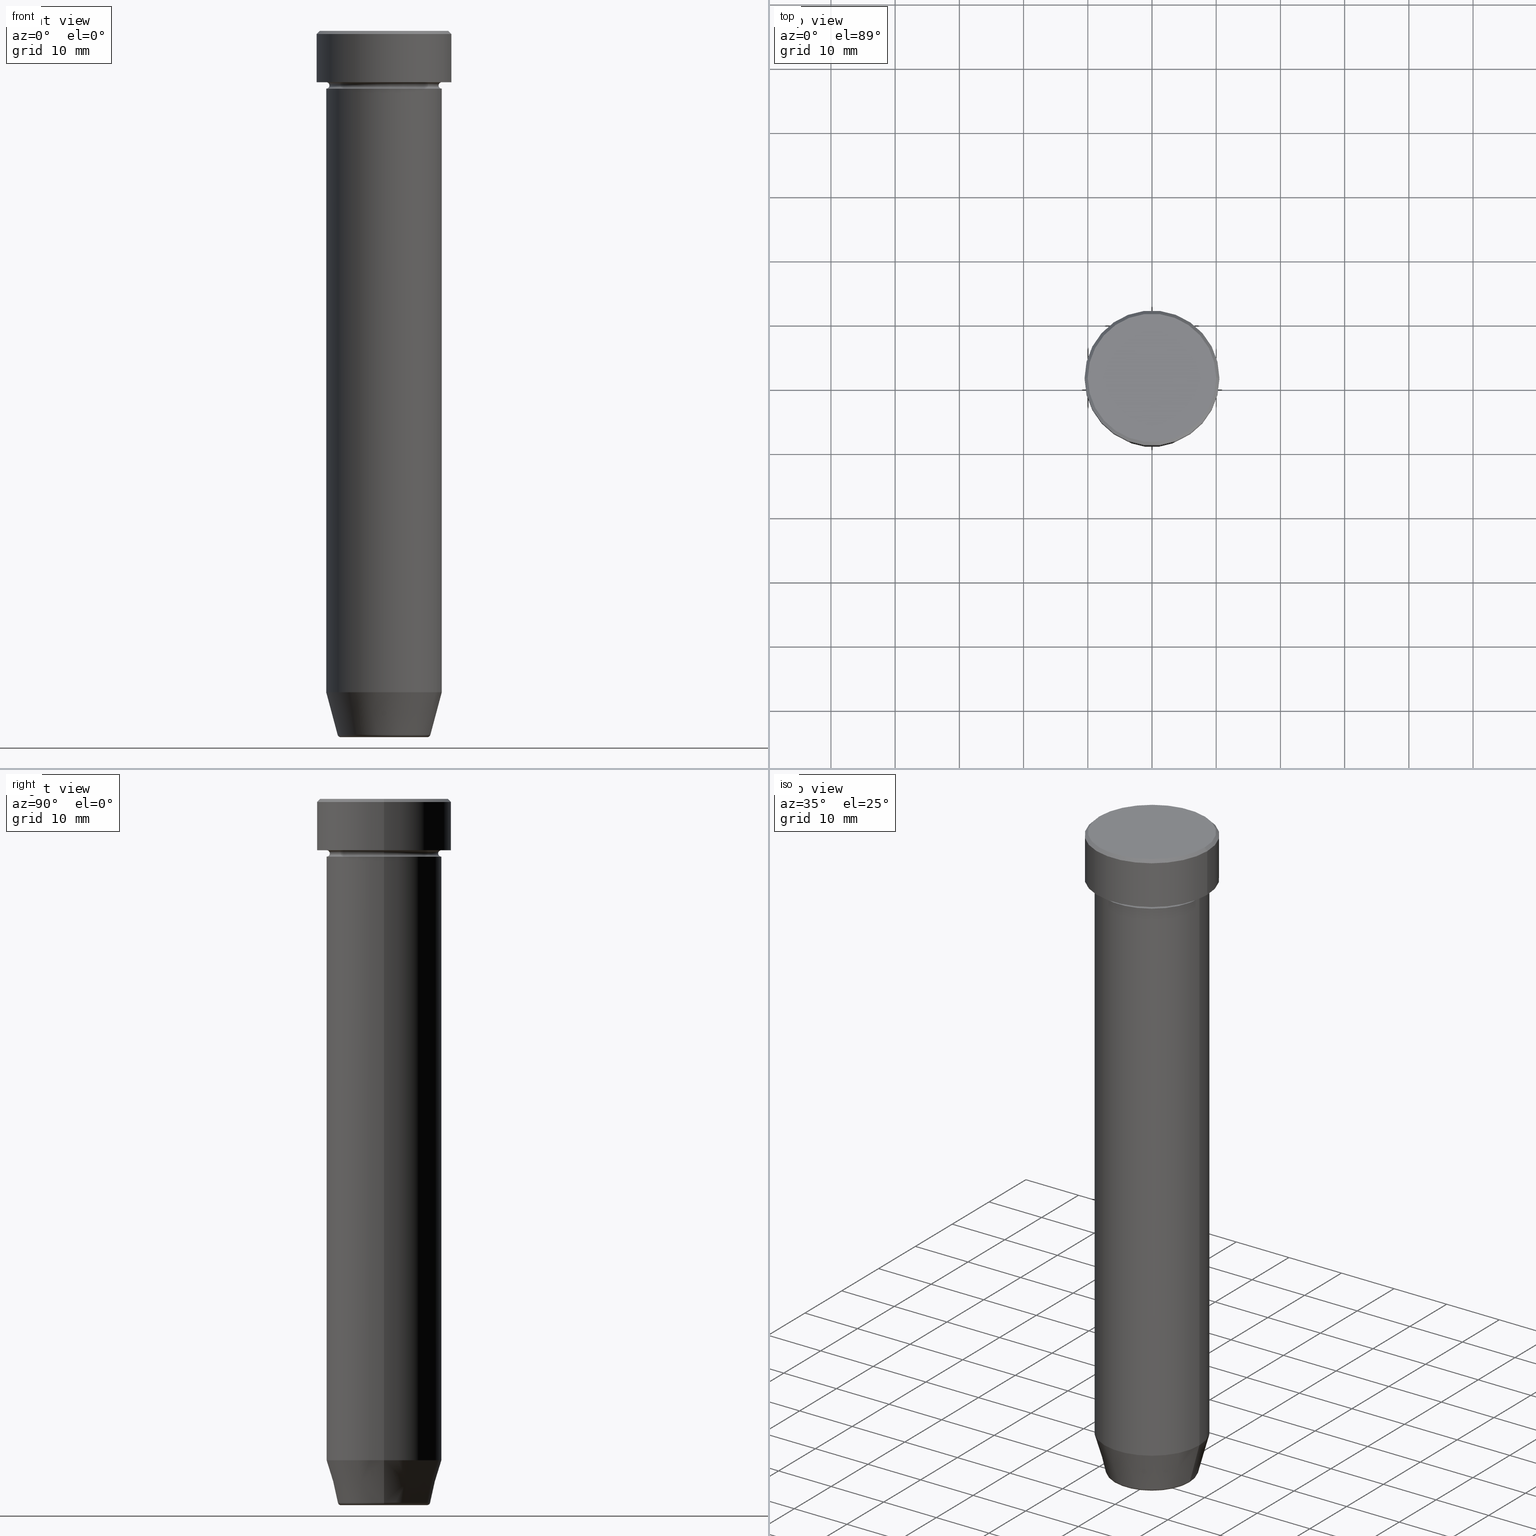
[diagram: canonical four-view strip — front | top / right | iso, engineering-drawing reading convention]
A machine part, canonical four-view strip (front | top / right | iso — engineering-drawing reading convention). The complete STEP part file that produces these views, byte-faithful:
ISO-10303-21;
HEADER;
FILE_DESCRIPTION (( 'STEP AP203' ),
    '1' );
FILE_NAME ('9805.STEP',
    '2024-01-02T22:08:02',
    ( '' ),
    ( '' ),
    'SwSTEP 2.0',
    'SolidWorks 2019',
    '' );
FILE_SCHEMA (( 'CONFIG_CONTROL_DESIGN' ));
ENDSEC;

DATA;
#1 = AXIS2_PLACEMENT_3D ( 'NONE', #414, #132, #416 ) ;
#2 = EDGE_CURVE ( 'NONE', #444, #439, #373, .T. ) ;
#3 = FACE_OUTER_BOUND ( 'NONE', #287, .T. ) ;
#4 = FACE_OUTER_BOUND ( 'NONE', #521, .T. ) ;
#5 = CARTESIAN_POINT ( 'NONE',  ( 0.000000000000000000, 10.50000000000000000, -8.000000000000000000 ) ) ;
#6 = VERTEX_POINT ( 'NONE', #308 ) ;
#7 = CARTESIAN_POINT ( 'NONE',  ( 0.000000000000000000, 0.000000000000000000, 0.000000000000000000 ) ) ;
#8 = AXIS2_PLACEMENT_3D ( 'NONE', #187, #182, #559 ) ;
#9 = DIRECTION ( 'NONE',  ( -0.000000000000000000, -0.000000000000000000, 1.000000000000000000 ) ) ;
#10 = VERTEX_POINT ( 'NONE', #160 ) ;
#11 = CARTESIAN_POINT ( 'NONE',  ( 9.000000000000000000, 1.102182119232617714E-15, -8.000000000000000000 ) ) ;
#12 = ORIENTED_EDGE ( 'NONE', *, *, #585, .T. ) ;
#13 = DIRECTION ( 'NONE',  ( -0.000000000000000000, -0.000000000000000000, 1.000000000000000000 ) ) ;
#14 = DIRECTION ( 'NONE',  ( -0.000000000000000000, -0.000000000000000000, 1.000000000000000000 ) ) ;
#15 = EDGE_LOOP ( 'NONE', ( #355, #247 ) ) ;
#16 = CARTESIAN_POINT ( 'NONE',  ( 9.000000000000000000, 0.000000000000000000, 0.000000000000000000 ) ) ;
#17 = APPROVAL ( #83, 'NEUR�EN�' ) ;
#18 = CARTESIAN_POINT ( 'NONE',  ( 0.000000000000000000, 0.000000000000000000, -102.9999999999999858 ) ) ;
#19 = AXIS2_PLACEMENT_3D ( 'NONE', #111, #105, #581 ) ;
#20 = EDGE_LOOP ( 'NONE', ( #486, #291 ) ) ;
#21 = ORIENTED_EDGE ( 'NONE', *, *, #62, .T. ) ;
#22 =( NAMED_UNIT ( * ) SI_UNIT ( $, .STERADIAN. ) SOLID_ANGLE_UNIT ( ) );
#23 = ORIENTED_EDGE ( 'NONE', *, *, #95, .T. ) ;
#24 = APPROVAL ( #592, 'NEUR�EN�' ) ;
#25 = FACE_OUTER_BOUND ( 'NONE', #360, .T. ) ;
#26 = AXIS2_PLACEMENT_3D ( 'NONE', #159, #532, #109 ) ;
#27 = EDGE_LOOP ( 'NONE', ( #319, #235, #350, #121 ) ) ;
#28 = CC_DESIGN_APPROVAL ( #24, ( #330 ) ) ;
#29 = DIRECTION ( 'NONE',  ( -0.000000000000000000, -0.000000000000000000, 1.000000000000000000 ) ) ;
#30 = VERTEX_POINT ( 'NONE', #74 ) ;
#31 = PERSON_AND_ORGANIZATION_ROLE ( 'design_supplier' ) ;
#32 = AXIS2_PLACEMENT_3D ( 'NONE', #497, #499, #124 ) ;
#33 = EDGE_CURVE ( 'NONE', #185, #155, #59, .T. ) ;
#34 = ORIENTED_EDGE ( 'NONE', *, *, #500, .T. ) ;
#35 = AXIS2_PLACEMENT_3D ( 'NONE', #101, #189, #234 ) ;
#36 = DIRECTION ( 'NONE',  ( 0.000000000000000000, 0.000000000000000000, -1.000000000000000000 ) ) ;
#37 = CIRCLE ( 'NONE', #116, 0.5000000000000004441 ) ;
#38 = PERSON_AND_ORGANIZATION ( #313, #90 ) ;
#39 = CARTESIAN_POINT ( 'NONE',  ( 6.740692158992655614, 0.000000000000000000, -109.9999999999999858 ) ) ;
#40 = DATE_TIME_ROLE ( 'creation_date' ) ;
#41 = DATE_AND_TIME ( #79, #264 ) ;
#42 = ADVANCED_FACE ( 'NONE', ( #120 ), #265, .T. ) ;
#43 = EDGE_LOOP ( 'NONE', ( #261, #147, #312, #527 ) ) ;
#44 = CARTESIAN_POINT ( 'NONE',  ( 0.000000000000000000, 0.000000000000000000, -22.00000000000000000 ) ) ;
#45 = AXIS2_PLACEMENT_3D ( 'NONE', #113, #309, #496 ) ;
#46 = DIRECTION ( 'NONE',  ( -1.000000000000000000, 0.000000000000000000, 0.000000000000000000 ) ) ;
#47 = CIRCLE ( 'NONE', #174, 6.740692158992655614 ) ;
#48 = ADVANCED_FACE ( 'NONE', ( #237 ), #318, .F. ) ;
#49 = DIRECTION ( 'NONE',  ( -0.000000000000000000, -0.000000000000000000, 1.000000000000000000 ) ) ;
#50 = CYLINDRICAL_SURFACE ( 'NONE', #152, 10.50000000000000000 ) ;
#51 = CARTESIAN_POINT ( 'NONE',  ( -10.00000000000000178, 0.000000000000000000, 0.000000000000000000 ) ) ;
#52 = ORIENTED_EDGE ( 'NONE', *, *, #33, .T. ) ;
#53 = DIRECTION ( 'NONE',  ( 0.000000000000000000, 0.000000000000000000, -1.000000000000000000 ) ) ;
#54 = CIRCLE ( 'NONE', #574, 10.50000000000000000 ) ;
#55 = CARTESIAN_POINT ( 'NONE',  ( 0.000000000000000000, 0.000000000000000000, -8.000000000000000000 ) ) ;
#56 = ORIENTED_EDGE ( 'NONE', *, *, #417, .T. ) ;
#57 = CARTESIAN_POINT ( 'NONE',  ( 8.499999999999998224, 0.000000000000000000, -8.500000000000000000 ) ) ;
#58 = DIRECTION ( 'NONE',  ( -0.2588190451025210725, 3.169619151431769255E-17, 0.9659258262890680902 ) ) ;
#59 = CIRCLE ( 'NONE', #283, 0.5000000000000004441 ) ;
#60 = ORIENTED_EDGE ( 'NONE', *, *, #192, .F. ) ;
#62 = EDGE_CURVE ( 'NONE', #243, #439, #422, .T. ) ;
#61 = LINE ( 'NONE', #16, #363 ) ;
#63 = CARTESIAN_POINT ( 'NONE',  ( 0.000000000000000000, 0.000000000000000000, -8.000000000000000000 ) ) ;
#64 = VERTEX_POINT ( 'NONE', #277 ) ;
#65 = CARTESIAN_POINT ( 'NONE',  ( -9.000000000000000000, 1.102182119232617714E-15, -22.00000000000000000 ) ) ;
#66 = CARTESIAN_POINT ( 'NONE',  ( 7.124355652982136355, 0.000000000000000000, -109.9999999999999858 ) ) ;
#67 = CIRCLE ( 'NONE', #525, 9.000000000000000000 ) ;
#68 = LOCAL_TIME ( 23, 8, 2.000000000000000000, #276 ) ;
#69 = PRODUCT_DEFINITION_SHAPE ( 'NONE', 'NONE',  #330 ) ;
#70 = ORIENTED_EDGE ( 'NONE', *, *, #131, .T. ) ;
#71 = CARTESIAN_POINT ( 'NONE',  ( 0.000000000000000000, 0.000000000000000000, 0.000000000000000000 ) ) ;
#72 = DIRECTION ( 'NONE',  ( -1.000000000000000000, 0.000000000000000000, 0.000000000000000000 ) ) ;
#73 = EDGE_CURVE ( 'NONE', #533, #155, #467, .T. ) ;
#74 = CARTESIAN_POINT ( 'NONE',  ( -10.50000000000000000, 1.285879139104720831E-15, -8.000000000000000000 ) ) ;
#75 = EDGE_LOOP ( 'NONE', ( #374, #547, #78, #397 ) ) ;
#76 = DIRECTION ( 'NONE',  ( -0.000000000000000000, -0.000000000000000000, 1.000000000000000000 ) ) ;
#77 = AXIS2_PLACEMENT_3D ( 'NONE', #538, #578, #576 ) ;
#78 = ORIENTED_EDGE ( 'NONE', *, *, #398, .T. ) ;
#79 = CALENDAR_DATE ( 2024, 2, 1 ) ;
#80 = EDGE_CURVE ( 'NONE', #135, #401, #47, .T. ) ;
#81 = DIRECTION ( 'NONE',  ( -0.000000000000000000, -0.000000000000000000, 1.000000000000000000 ) ) ;
#82 = AXIS2_PLACEMENT_3D ( 'NONE', #332, #193, #561 ) ;
#83 = APPROVAL_STATUS ( 'not_yet_approved' ) ;
#84 = APPROVAL ( #172, 'NEUR�EN�' ) ;
#85 = FACE_OUTER_BOUND ( 'NONE', #347, .T. ) ;
#86 = AXIS2_PLACEMENT_3D ( 'NONE', #98, #36, #224 ) ;
#87 = FACE_OUTER_BOUND ( 'NONE', #502, .T. ) ;
#88 = TOROIDAL_SURFACE ( 'NONE', #428, 6.740692158992655614, 0.5000000000000000000 ) ;
#89 = APPROVAL_DATE_TIME ( #324, #17 ) ;
#90 = ORGANIZATION ( 'NEUR�EN�', 'NEUR�EN�', '' ) ;
#91 = ADVANCED_FACE ( 'NONE', ( #92 ), #385, .F. ) ;
#92 = FACE_OUTER_BOUND ( 'NONE', #20, .T. ) ;
#93 = PERSON_AND_ORGANIZATION ( #313, #90 ) ;
#95 = EDGE_CURVE ( 'NONE', #127, #339, #511, .T. ) ;
#94 = DIRECTION ( 'NONE',  ( 1.000000000000000000, 0.000000000000000000, 0.000000000000000000 ) ) ;
#96 = CONICAL_SURFACE ( 'NONE', #8, 7.124355652982136355, 0.2617993877991497964 ) ;
#97 = AXIS2_PLACEMENT_3D ( 'NONE', #437, #161, #167 ) ;
#98 = CARTESIAN_POINT ( 'NONE',  ( 0.000000000000000000, 0.000000000000000000, -0.5000000000000023315 ) ) ;
#99 = ORIENTED_EDGE ( 'NONE', *, *, #269, .F. ) ;
#100 = CARTESIAN_POINT ( 'NONE',  ( 0.000000000000000000, 0.000000000000000000, -0.5000000000000023315 ) ) ;
#101 = CARTESIAN_POINT ( 'NONE',  ( 0.000000000000000000, 0.000000000000000000, -8.000000000000000000 ) ) ;
#102 = ORIENTED_EDGE ( 'NONE', *, *, #549, .F. ) ;
#103 = CARTESIAN_POINT ( 'NONE',  ( -6.740692158992655614, 8.550696569392681737E-16, -109.9999999999999858 ) ) ;
#104 = CIRCLE ( 'NONE', #412, 10.50000000000000000 ) ;
#105 = DIRECTION ( 'NONE',  ( -0.000000000000000000, -0.000000000000000000, 1.000000000000000000 ) ) ;
#106 = EDGE_CURVE ( 'NONE', #110, #536, #145, .T. ) ;
#107 = VERTEX_POINT ( 'NONE', #270 ) ;
#108 = DIRECTION ( 'NONE',  ( -0.000000000000000000, -0.000000000000000000, 1.000000000000000000 ) ) ;
#109 = DIRECTION ( 'NONE',  ( 1.000000000000000000, 0.000000000000000000, 0.000000000000000000 ) ) ;
#110 = VERTEX_POINT ( 'NONE', #275 ) ;
#111 = CARTESIAN_POINT ( 'NONE',  ( 0.000000000000000000, 0.000000000000000000, -9.000000000000001776 ) ) ;
#112 = ORIENTED_EDGE ( 'NONE', *, *, #285, .F. ) ;
#113 = CARTESIAN_POINT ( 'NONE',  ( 0.000000000000000000, 0.000000000000000000, 0.000000000000000000 ) ) ;
#114 = ADVANCED_FACE ( 'NONE', ( #173 ), #411, .T. ) ;
#115 = DIRECTION ( 'NONE',  ( -0.000000000000000000, -0.000000000000000000, 1.000000000000000000 ) ) ;
#116 = AXIS2_PLACEMENT_3D ( 'NONE', #489, #354, #572 ) ;
#117 = ORIENTED_EDGE ( 'NONE', *, *, #590, .T. ) ;
#118 = DIRECTION ( 'NONE',  ( -0.000000000000000000, -0.000000000000000000, 1.000000000000000000 ) ) ;
#119 = PRODUCT_RELATED_PRODUCT_CATEGORY ( 'detail', '', ( #300 ) ) ;
#120 = FACE_OUTER_BOUND ( 'NONE', #194, .T. ) ;
#121 = ORIENTED_EDGE ( 'NONE', *, *, #149, .F. ) ;
#122 = MANIFOLD_SOLID_BREP ( 'Zaoblit4', #326 ) ;
#123 = VECTOR ( 'NONE', #58, 1000.000000000000114 ) ;
#124 = DIRECTION ( 'NONE',  ( -1.000000000000000000, -1.224646799147353454E-16, 0.000000000000000000 ) ) ;
#125 = CC_DESIGN_DATE_AND_TIME_ASSIGNMENT ( #41, #40, ( #330 ) ) ;
#126 = CALENDAR_DATE ( 2024, 2, 1 ) ;
#127 = VERTEX_POINT ( 'NONE', #177 ) ;
#128 = DATE_TIME_ROLE ( 'classification_date' ) ;
#129 = DIRECTION ( 'NONE',  ( 0.000000000000000000, -0.000000000000000000, 1.000000000000000000 ) ) ;
#130 = SHAPE_DEFINITION_REPRESENTATION ( #69, #586 ) ;
#131 = EDGE_CURVE ( 'NONE', #439, #243, #220, .T. ) ;
#132 = DIRECTION ( 'NONE',  ( 0.000000000000000000, 0.000000000000000000, -1.000000000000000000 ) ) ;
#133 = AXIS2_PLACEMENT_3D ( 'NONE', #295, #346, #209 ) ;
#134 = APPROVAL_DATE_TIME ( #415, #24 ) ;
#135 = VERTEX_POINT ( 'NONE', #39 ) ;
#136 = CLOSED_SHELL ( 'NONE', ( #359, #317, #48, #158, #519, #531, #406, #370, #176, #42, #262, #168, #114 ) ) ;
#137 = EDGE_CURVE ( 'NONE', #135, #190, #554, .T. ) ;
#138 = DIRECTION ( 'NONE',  ( -0.000000000000000000, -0.000000000000000000, 1.000000000000000000 ) ) ;
#139 = CONICAL_SURFACE ( 'NONE', #535, 7.124355652982136355, 0.2617993877991497964 ) ;
#140 = FACE_OUTER_BOUND ( 'NONE', #143, .T. ) ;
#141 = CIRCLE ( 'NONE', #212, 9.000000000000000000 ) ;
#142 = CARTESIAN_POINT ( 'NONE',  ( 0.000000000000000000, 7.347880794884118356E-15, -109.9999999999999858 ) ) ;
#143 = EDGE_LOOP ( 'NONE', ( #213, #575, #425, #102 ) ) ;
#144 = CARTESIAN_POINT ( 'NONE',  ( 0.000000000000000000, 0.000000000000000000, -9.000000000000001776 ) ) ;
#145 = CIRCLE ( 'NONE', #466, 9.000000000000000000 ) ;
#146 = DIRECTION ( 'NONE',  ( 0.000000000000000000, 0.000000000000000000, -1.000000000000000000 ) ) ;
#147 = ORIENTED_EDGE ( 'NONE', *, *, #203, .T. ) ;
#148 = DIRECTION ( 'NONE',  ( 1.000000000000000000, 0.000000000000000000, 0.000000000000000000 ) ) ;
#149 = EDGE_CURVE ( 'NONE', #64, #170, #271, .T. ) ;
#150 = ORIENTED_EDGE ( 'NONE', *, *, #215, .T. ) ;
#151 = DIRECTION ( 'NONE',  ( -0.000000000000000000, -0.000000000000000000, 1.000000000000000000 ) ) ;
#152 = AXIS2_PLACEMENT_3D ( 'NONE', #420, #568, #148 ) ;
#153 = CARTESIAN_POINT ( 'NONE',  ( 0.000000000000000000, 0.000000000000000000, -109.6294095225512564 ) ) ;
#154 =( GEOMETRIC_REPRESENTATION_CONTEXT ( 3 ) GLOBAL_UNCERTAINTY_ASSIGNED_CONTEXT ( ( #242 ) ) GLOBAL_UNIT_ASSIGNED_CONTEXT ( ( #445, #345, #22 ) ) REPRESENTATION_CONTEXT ( 'NONE', 'WORKASPACE' ) );
#155 = VERTEX_POINT ( 'NONE', #507 ) ;
#156 = CARTESIAN_POINT ( 'NONE',  ( 10.00000000000000178, 1.255262969126037241E-15, 0.000000000000000000 ) ) ;
#157 = ORIENTED_EDGE ( 'NONE', *, *, #131, .F. ) ;
#158 = ADVANCED_FACE ( 'NONE', ( #87 ), #569, .T. ) ;
#159 = CARTESIAN_POINT ( 'NONE',  ( 0.000000000000000000, 0.000000000000000000, -8.500000000000000000 ) ) ;
#160 = CARTESIAN_POINT ( 'NONE',  ( -9.000000000000000000, 1.102182119232617714E-15, -22.00000000000000000 ) ) ;
#161 = DIRECTION ( 'NONE',  ( -0.000000000000000000, -0.000000000000000000, 1.000000000000000000 ) ) ;
#162 = DIRECTION ( 'NONE',  ( -1.000000000000000000, 0.000000000000000000, 0.000000000000000000 ) ) ;
#163 = VECTOR ( 'NONE', #76, 1000.000000000000000 ) ;
#164 = ORIENTED_EDGE ( 'NONE', *, *, #549, .T. ) ;
#165 = CARTESIAN_POINT ( 'NONE',  ( -10.50000000000000000, 1.285879139104720831E-15, 0.000000000000000000 ) ) ;
#166 = ORIENTED_EDGE ( 'NONE', *, *, #297, .T. ) ;
#167 = DIRECTION ( 'NONE',  ( 1.000000000000000000, 0.000000000000000000, 0.000000000000000000 ) ) ;
#168 = ADVANCED_FACE ( 'NONE', ( #226 ), #290, .F. ) ;
#169 = VERTEX_POINT ( 'NONE', #598 ) ;
#170 = VERTEX_POINT ( 'NONE', #286 ) ;
#171 = CIRCLE ( 'NONE', #594, 7.223655072137189492 ) ;
#172 = APPROVAL_STATUS ( 'not_yet_approved' ) ;
#173 = FACE_OUTER_BOUND ( 'NONE', #27, .T. ) ;
#174 = AXIS2_PLACEMENT_3D ( 'NONE', #477, #146, #509 ) ;
#175 = PERSON_AND_ORGANIZATION ( #313, #90 ) ;
#176 = ADVANCED_FACE ( 'NONE', ( #368, #85 ), #552, .T. ) ;
#177 = CARTESIAN_POINT ( 'NONE',  ( -10.00000000000000178, 0.000000000000000000, 0.000000000000000000 ) ) ;
#178 = DATE_AND_TIME ( #217, #413 ) ;
#179 = AXIS2_PLACEMENT_3D ( 'NONE', #252, #205, #403 ) ;
#180 = EDGE_CURVE ( 'NONE', #127, #170, #474, .T. ) ;
#181 = LINE ( 'NONE', #558, #362 ) ;
#182 = DIRECTION ( 'NONE',  ( -0.000000000000000000, -0.000000000000000000, 1.000000000000000000 ) ) ;
#183 = DIRECTION ( 'NONE',  ( 0.000000000000000000, 0.000000000000000000, -1.000000000000000000 ) ) ;
#184 = AXIS2_PLACEMENT_3D ( 'NONE', #366, #460, #320 ) ;
#185 = VERTEX_POINT ( 'NONE', #196 ) ;
#186 = AXIS2_PLACEMENT_3D ( 'NONE', #144, #151, #94 ) ;
#187 = CARTESIAN_POINT ( 'NONE',  ( 0.000000000000000000, 0.000000000000000000, -109.9999999999999858 ) ) ;
#188 = APPROVAL_PERSON_ORGANIZATION ( #596, #84, #553 ) ;
#189 = DIRECTION ( 'NONE',  ( -0.000000000000000000, -0.000000000000000000, 1.000000000000000000 ) ) ;
#190 = VERTEX_POINT ( 'NONE', #338 ) ;
#192 = EDGE_CURVE ( 'NONE', #190, #536, #307, .T. ) ;
#191 = DIRECTION ( 'NONE',  ( 1.000000000000000000, 0.000000000000000000, 0.000000000000000000 ) ) ;
#193 = DIRECTION ( 'NONE',  ( -0.000000000000000000, -0.000000000000000000, 1.000000000000000000 ) ) ;
#194 = EDGE_LOOP ( 'NONE', ( #517, #543, #216, #583 ) ) ;
#195 = CARTESIAN_POINT ( 'NONE',  ( -9.000000000000000000, 1.102182119232617714E-15, 0.000000000000000000 ) ) ;
#196 = CARTESIAN_POINT ( 'NONE',  ( -8.499999999999998224, 1.071565949253933927E-15, -8.500000000000000000 ) ) ;
#197 = DESIGN_CONTEXT ( 'detailed design', #523, 'design' ) ;
#198 = EDGE_LOOP ( 'NONE', ( #12, #301, #429, #251 ) ) ;
#199 = LINE ( 'NONE', #165, #163 ) ;
#200 = AXIS2_PLACEMENT_3D ( 'NONE', #5, #183, #377 ) ;
#201 = CARTESIAN_POINT ( 'NONE',  ( 0.000000000000000000, 0.000000000000000000, -8.500000000000000000 ) ) ;
#202 = SECURITY_CLASSIFICATION ( '', '', #361 ) ;
#203 = EDGE_CURVE ( 'NONE', #401, #107, #514, .T. ) ;
#204 = ORIENTED_EDGE ( 'NONE', *, *, #565, .F. ) ;
#205 = DIRECTION ( 'NONE',  ( 0.000000000000000000, 0.000000000000000000, -1.000000000000000000 ) ) ;
#206 = DIRECTION ( 'NONE',  ( 0.000000000000000000, 0.000000000000000000, -1.000000000000000000 ) ) ;
#207 = EDGE_LOOP ( 'NONE', ( #166, #56, #99, #239 ) ) ;
#208 = DIRECTION ( 'NONE',  ( -0.000000000000000000, -0.000000000000000000, 1.000000000000000000 ) ) ;
#209 = DIRECTION ( 'NONE',  ( -1.000000000000000000, 1.224646799147353454E-16, 0.000000000000000000 ) ) ;
#210 = ORIENTED_EDGE ( 'NONE', *, *, #278, .F. ) ;
#211 = DIRECTION ( 'NONE',  ( 0.000000000000000000, 0.000000000000000000, -1.000000000000000000 ) ) ;
#212 = AXIS2_PLACEMENT_3D ( 'NONE', #442, #400, #446 ) ;
#213 = ORIENTED_EDGE ( 'NONE', *, *, #203, .F. ) ;
#214 = CARTESIAN_POINT ( 'NONE',  ( 0.000000000000000000, 0.000000000000000000, 0.000000000000000000 ) ) ;
#215 = EDGE_CURVE ( 'NONE', #185, #243, #37, .T. ) ;
#216 = ORIENTED_EDGE ( 'NONE', *, *, #573, .T. ) ;
#217 = CALENDAR_DATE ( 2024, 2, 1 ) ;
#218 = ORIENTED_EDGE ( 'NONE', *, *, #500, .F. ) ;
#219 = PERSON_AND_ORGANIZATION_ROLE ( 'creator' ) ;
#220 = CIRCLE ( 'NONE', #35, 9.000000000000000000 ) ;
#221 = CIRCLE ( 'NONE', #390, 10.50000000000000000 ) ;
#222 = EDGE_CURVE ( 'NONE', #30, #6, #104, .T. ) ;
#223 = APPROVAL_PERSON_ORGANIZATION ( #316, #17, #229 ) ;
#224 = DIRECTION ( 'NONE',  ( 1.000000000000000000, 0.000000000000000000, 0.000000000000000000 ) ) ;
#225 = PERSON_AND_ORGANIZATION ( #313, #90 ) ;
#226 = FACE_OUTER_BOUND ( 'NONE', #386, .T. ) ;
#227 = CC_DESIGN_PERSON_AND_ORGANIZATION_ASSIGNMENT ( #410, #228, ( #202 ) ) ;
#228 = PERSON_AND_ORGANIZATION_ROLE ( 'classification_officer' ) ;
#229 = APPROVAL_ROLE ( '' ) ;
#230 = CIRCLE ( 'NONE', #582, 8.499999999999998224 ) ;
#231 = ORIENTED_EDGE ( 'NONE', *, *, #249, .T. ) ;
#232 = DIRECTION ( 'NONE',  ( -0.000000000000000000, -0.000000000000000000, 1.000000000000000000 ) ) ;
#233 = DIRECTION ( 'NONE',  ( -0.000000000000000000, -0.000000000000000000, 1.000000000000000000 ) ) ;
#234 = DIRECTION ( 'NONE',  ( -1.000000000000000000, 0.000000000000000000, 0.000000000000000000 ) ) ;
#235 = ORIENTED_EDGE ( 'NONE', *, *, #95, .F. ) ;
#236 = CARTESIAN_POINT ( 'NONE',  ( 0.000000000000000000, 0.000000000000000000, 0.000000000000000000 ) ) ;
#237 = FACE_OUTER_BOUND ( 'NONE', #409, .T. ) ;
#238 = EDGE_CURVE ( 'NONE', #107, #110, #255, .T. ) ;
#239 = ORIENTED_EDGE ( 'NONE', *, *, #398, .F. ) ;
#240 = CARTESIAN_POINT ( 'NONE',  ( 0.000000000000000000, 0.000000000000000000, -109.4999999999999858 ) ) ;
#241 = DIRECTION ( 'NONE',  ( 1.000000000000000000, 0.000000000000000000, 0.000000000000000000 ) ) ;
#242 = UNCERTAINTY_MEASURE_WITH_UNIT (LENGTH_MEASURE( 1.000000000000000082E-05 ), #445, 'distance_accuracy_value', 'NONE');
#243 = VERTEX_POINT ( 'NONE', #302 ) ;
#244 = DIRECTION ( 'NONE',  ( 0.000000000000000000, -0.000000000000000000, 1.000000000000000000 ) ) ;
#245 = AXIS2_PLACEMENT_3D ( 'NONE', #505, #550, #241 ) ;
#246 = FACE_OUTER_BOUND ( 'NONE', #563, .T. ) ;
#247 = ORIENTED_EDGE ( 'NONE', *, *, #463, .T. ) ;
#248 = DIRECTION ( 'NONE',  ( 0.7071067811865450192, 8.659560562354902043E-17, -0.7071067811865500152 ) ) ;
#249 = EDGE_CURVE ( 'NONE', #190, #107, #340, .T. ) ;
#250 = FACE_OUTER_BOUND ( 'NONE', #198, .T. ) ;
#251 = ORIENTED_EDGE ( 'NONE', *, *, #215, .F. ) ;
#252 = CARTESIAN_POINT ( 'NONE',  ( 0.000000000000000000, 0.000000000000000000, -109.9999999999999858 ) ) ;
#253 = CIRCLE ( 'NONE', #555, 9.000000000000000000 ) ;
#254 = CC_DESIGN_PERSON_AND_ORGANIZATION_ASSIGNMENT ( #225, #219, ( #330 ) ) ;
#255 = LINE ( 'NONE', #482, #123 ) ;
#256 = VERTEX_POINT ( 'NONE', #342 ) ;
#257 = CARTESIAN_POINT ( 'NONE',  ( 0.000000000000000000, 0.000000000000000000, -109.6294095225512564 ) ) ;
#258 = DIRECTION ( 'NONE',  ( -0.000000000000000000, -0.000000000000000000, 1.000000000000000000 ) ) ;
#259 = DIRECTION ( 'NONE',  ( 1.224646799147353207E-16, 1.000000000000000000, 0.000000000000000000 ) ) ;
#260 = MECHANICAL_CONTEXT ( 'NONE', #281, 'mechanical' ) ;
#261 = ORIENTED_EDGE ( 'NONE', *, *, #542, .F. ) ;
#262 = ADVANCED_FACE ( 'NONE', ( #246 ), #508, .F. ) ;
#263 = FACE_OUTER_BOUND ( 'NONE', #364, .T. ) ;
#264 = LOCAL_TIME ( 23, 8, 2.000000000000000000, #548 ) ;
#265 = CYLINDRICAL_SURFACE ( 'NONE', #541, 9.000000000000000000 ) ;
#266 = APPLICATION_PROTOCOL_DEFINITION ( 'international standard', 'config_control_design', 1994, #523 ) ;
#267 = CARTESIAN_POINT ( 'NONE',  ( -9.000000000000000000, 1.102182119232617714E-15, -8.500000000000000000 ) ) ;
#268 = CALENDAR_DATE ( 2024, 2, 1 ) ;
#269 = EDGE_CURVE ( 'NONE', #394, #10, #141, .T. ) ;
#270 = CARTESIAN_POINT ( 'NONE',  ( -7.223655072137189492, 9.934123627281763137E-16, -109.6294095225512564 ) ) ;
#271 = CIRCLE ( 'NONE', #86, 10.50000000000000000 ) ;
#272 = CC_DESIGN_PERSON_AND_ORGANIZATION_ASSIGNMENT ( #93, #31, ( #372 ) ) ;
#273 = AXIS2_PLACEMENT_3D ( 'NONE', #468, #232, #513 ) ;
#274 = LOCAL_TIME ( 23, 8, 2.000000000000000000, #408 ) ;
#275 = CARTESIAN_POINT ( 'NONE',  ( -9.000000000000000000, 1.102182119232617714E-15, -102.9999999999999858 ) ) ;
#276 = COORDINATED_UNIVERSAL_TIME_OFFSET ( 1, 0, .AHEAD. ) ;
#277 = CARTESIAN_POINT ( 'NONE',  ( 10.50000000000000000, 0.000000000000000000, -0.5000000000000023315 ) ) ;
#278 = EDGE_CURVE ( 'NONE', #256, #533, #351, .T. ) ;
#279 = CYLINDRICAL_SURFACE ( 'NONE', #314, 9.000000000000000000 ) ;
#280 = LOCAL_TIME ( 23, 8, 2.000000000000000000, #599 ) ;
#281 = APPLICATION_CONTEXT ( 'configuration controlled 3d designs of mechanical parts and assemblies' ) ;
#282 = CARTESIAN_POINT ( 'NONE',  ( 0.000000000000000000, 0.000000000000000000, -8.500000000000000000 ) ) ;
#283 = AXIS2_PLACEMENT_3D ( 'NONE', #267, #259, #539 ) ;
#284 = DIRECTION ( 'NONE',  ( 0.000000000000000000, 0.000000000000000000, -1.000000000000000000 ) ) ;
#285 = EDGE_CURVE ( 'NONE', #6, #30, #221, .T. ) ;
#286 = CARTESIAN_POINT ( 'NONE',  ( -10.50000000000000000, 1.285879139104720831E-15, -0.5000000000000023315 ) ) ;
#287 = EDGE_LOOP ( 'NONE', ( #380, #164, #577, #344 ) ) ;
#288 = FACE_OUTER_BOUND ( 'NONE', #207, .T. ) ;
#289 = DIRECTION ( 'NONE',  ( -1.000000000000000000, 0.000000000000000000, 0.000000000000000000 ) ) ;
#290 = TOROIDAL_SURFACE ( 'NONE', #1, 9.000000000000000000, 0.5000000000000000000 ) ;
#291 = ORIENTED_EDGE ( 'NONE', *, *, #542, .T. ) ;
#292 = TOROIDAL_SURFACE ( 'NONE', #490, 6.740692158992655614, 0.5000000000000000000 ) ;
#293 = CARTESIAN_POINT ( 'NONE',  ( 0.000000000000000000, 0.000000000000000000, -109.4999999999999858 ) ) ;
#294 = AXIS2_PLACEMENT_3D ( 'NONE', #214, #208, #405 ) ;
#295 = CARTESIAN_POINT ( 'NONE',  ( -6.740692158992655614, 8.254967076548017297E-16, -109.4999999999999858 ) ) ;
#296 = ORIENTED_EDGE ( 'NONE', *, *, #421, .T. ) ;
#297 = EDGE_CURVE ( 'NONE', #536, #110, #67, .T. ) ;
#298 = LINE ( 'NONE', #584, #562 ) ;
#299 = CARTESIAN_POINT ( 'NONE',  ( 0.000000000000000000, 0.000000000000000000, -22.00000000000000000 ) ) ;
#300 = PRODUCT ( '9805', '9805', '', ( #260 ) ) ;
#301 = ORIENTED_EDGE ( 'NONE', *, *, #2, .T. ) ;
#302 = CARTESIAN_POINT ( 'NONE',  ( -9.000000000000000000, 0.000000000000000000, -8.000000000000000000 ) ) ;
#303 = ORIENTED_EDGE ( 'NONE', *, *, #238, .T. ) ;
#304 = CARTESIAN_POINT ( 'NONE',  ( 0.000000000000000000, 0.000000000000000000, 0.000000000000000000 ) ) ;
#305 = VECTOR ( 'NONE', #435, 1000.000000000000114 ) ;
#306 = CC_DESIGN_SECURITY_CLASSIFICATION ( #202, ( #372 ) ) ;
#307 = LINE ( 'NONE', #66, #305 ) ;
#308 = CARTESIAN_POINT ( 'NONE',  ( 10.50000000000000000, 0.000000000000000000, -8.000000000000000000 ) ) ;
#309 = DIRECTION ( 'NONE',  ( 0.000000000000000000, 0.000000000000000000, 1.000000000000000000 ) ) ;
#310 = EDGE_CURVE ( 'NONE', #169, #155, #492, .T. ) ;
#311 = ORIENTED_EDGE ( 'NONE', *, *, #421, .F. ) ;
#312 = ORIENTED_EDGE ( 'NONE', *, *, #249, .F. ) ;
#313 = PERSON ( 'NEUR�EN�', 'NEUR�EN�', 'NEUR�EN�', ('NEUR�EN�'), ('NEUR�EN�'), ('NEUR�EN�') ) ;
#314 = AXIS2_PLACEMENT_3D ( 'NONE', #236, #138, #191 ) ;
#315 = ORIENTED_EDGE ( 'NONE', *, *, #557, .T. ) ;
#316 = PERSON_AND_ORGANIZATION ( #313, #90 ) ;
#317 = ADVANCED_FACE ( 'NONE', ( #250 ), #321, .F. ) ;
#318 = TOROIDAL_SURFACE ( 'NONE', #82, 9.000000000000000000, 0.5000000000000000000 ) ;
#319 = ORIENTED_EDGE ( 'NONE', *, *, #590, .F. ) ;
#320 = DIRECTION ( 'NONE',  ( -1.000000000000000000, 0.000000000000000000, 0.000000000000000000 ) ) ;
#321 = TOROIDAL_SURFACE ( 'NONE', #470, 9.000000000000000000, 0.5000000000000000000 ) ;
#322 = CIRCLE ( 'NONE', #97, 8.499999999999998224 ) ;
#323 = CARTESIAN_POINT ( 'NONE',  ( -9.000000000000000000, 1.102182119232617714E-15, 0.000000000000000000 ) ) ;
#324 = DATE_AND_TIME ( #268, #274 ) ;
#325 = ADVANCED_FACE ( 'NONE', ( #396 ), #438, .F. ) ;
#326 = CLOSED_SHELL ( 'NONE', ( #457, #479, #434, #325, #506, #375, #91, #488 ) ) ;
#327 = EDGE_LOOP ( 'NONE', ( #21, #70 ) ) ;
#328 = CARTESIAN_POINT ( 'NONE',  ( 0.000000000000000000, 0.000000000000000000, -109.9999999999999858 ) ) ;
#329 = AXIS2_PLACEMENT_3D ( 'NONE', #304, #29, #399 ) ;
#331 = DIRECTION ( 'NONE',  ( -0.000000000000000000, -0.000000000000000000, 1.000000000000000000 ) ) ;
#330 = PRODUCT_DEFINITION ( 'NEZN�M�', '', #372, #197 ) ;
#332 = CARTESIAN_POINT ( 'NONE',  ( 0.000000000000000000, 0.000000000000000000, -8.500000000000000000 ) ) ;
#333 = ORIENTED_EDGE ( 'NONE', *, *, #2, .F. ) ;
#334 = FACE_OUTER_BOUND ( 'NONE', #591, .T. ) ;
#335 = DIRECTION ( 'NONE',  ( -0.000000000000000000, -0.000000000000000000, 1.000000000000000000 ) ) ;
#336 = ORIENTED_EDGE ( 'NONE', *, *, #285, .T. ) ;
#337 = DIRECTION ( 'NONE',  ( 1.000000000000000000, 0.000000000000000000, 0.000000000000000000 ) ) ;
#338 = CARTESIAN_POINT ( 'NONE',  ( 7.223655072137189492, 0.000000000000000000, -109.6294095225512564 ) ) ;
#339 = VERTEX_POINT ( 'NONE', #156 ) ;
#340 = CIRCLE ( 'NONE', #478, 7.223655072137189492 ) ;
#341 = CARTESIAN_POINT ( 'NONE',  ( 0.000000000000000000, 0.000000000000000000, 0.000000000000000000 ) ) ;
#342 = CARTESIAN_POINT ( 'NONE',  ( 9.000000000000000000, 0.000000000000000000, -22.00000000000000000 ) ) ;
#343 = EDGE_CURVE ( 'NONE', #533, #256, #253, .T. ) ;
#344 = ORIENTED_EDGE ( 'NONE', *, *, #106, .F. ) ;
#345 =( NAMED_UNIT ( * ) PLANE_ANGLE_UNIT ( ) SI_UNIT ( $, .RADIAN. ) );
#346 = DIRECTION ( 'NONE',  ( 1.224646799147353207E-16, 1.000000000000000000, 0.000000000000000000 ) ) ;
#347 = EDGE_LOOP ( 'NONE', ( #112, #450 ) ) ;
#348 = DIRECTION ( 'NONE',  ( -0.000000000000000000, -0.000000000000000000, 1.000000000000000000 ) ) ;
#349 = DIRECTION ( 'NONE',  ( 1.000000000000000000, 0.000000000000000000, 0.000000000000000000 ) ) ;
#350 = ORIENTED_EDGE ( 'NONE', *, *, #180, .T. ) ;
#351 = CIRCLE ( 'NONE', #378, 9.000000000000000000 ) ;
#352 = EDGE_CURVE ( 'NONE', #155, #169, #462, .T. ) ;
#353 = AXIS2_PLACEMENT_3D ( 'NONE', #452, #211, #358 ) ;
#354 = DIRECTION ( 'NONE',  ( -0.000000000000000000, -1.000000000000000000, -0.000000000000000000 ) ) ;
#355 = ORIENTED_EDGE ( 'NONE', *, *, #269, .T. ) ;
#356 = LINE ( 'NONE', #395, #392 ) ;
#357 = ORIENTED_EDGE ( 'NONE', *, *, #310, .T. ) ;
#358 = DIRECTION ( 'NONE',  ( -1.000000000000000000, 0.000000000000000000, -0.000000000000000000 ) ) ;
#359 = ADVANCED_FACE ( 'NONE', ( #384 ), #545, .T. ) ;
#360 = EDGE_LOOP ( 'NONE', ( #336, #579, #34, #204 ) ) ;
#361 = SECURITY_CLASSIFICATION_LEVEL ( 'unclassified' ) ;
#362 = VECTOR ( 'NONE', #331, 1000.000000000000000 ) ;
#363 = VECTOR ( 'NONE', #588, 1000.000000000000000 ) ;
#364 = EDGE_LOOP ( 'NONE', ( #210, #544 ) ) ;
#365 = AXIS2_PLACEMENT_3D ( 'NONE', #55, #566, #289 ) ;
#366 = CARTESIAN_POINT ( 'NONE',  ( 0.000000000000000000, 0.000000000000000000, 0.000000000000000000 ) ) ;
#367 = PERSON_AND_ORGANIZATION_ROLE ( 'creator' ) ;
#368 = FACE_BOUND ( 'NONE', #327, .T. ) ;
#369 = APPROVAL_ROLE ( '' ) ;
#370 = ADVANCED_FACE ( 'NONE', ( #473 ), #50, .T. ) ;
#371 = CIRCLE ( 'NONE', #273, 9.000000000000000000 ) ;
#372 = PRODUCT_DEFINITION_FORMATION_WITH_SPECIFIED_SOURCE ( 'LIBOVOLN�', '', #300, .NOT_KNOWN. ) ;
#373 = CIRCLE ( 'NONE', #32, 0.5000000000000004441 ) ;
#374 = ORIENTED_EDGE ( 'NONE', *, *, #417, .F. ) ;
#375 = ADVANCED_FACE ( 'NONE', ( #3 ), #139, .T. ) ;
#376 = DIRECTION ( 'NONE',  ( -0.000000000000000000, -0.000000000000000000, 1.000000000000000000 ) ) ;
#377 = DIRECTION ( 'NONE',  ( -1.000000000000000000, 0.000000000000000000, -0.000000000000000000 ) ) ;
#378 = AXIS2_PLACEMENT_3D ( 'NONE', #299, #115, #524 ) ;
#379 = CC_DESIGN_APPROVAL ( #84, ( #372 ) ) ;
#380 = ORIENTED_EDGE ( 'NONE', *, *, #238, .F. ) ;
#381 = DIRECTION ( 'NONE',  ( -0.000000000000000000, -0.000000000000000000, 1.000000000000000000 ) ) ;
#382 = DIRECTION ( 'NONE',  ( 0.000000000000000000, -1.000000000000000000, 0.000000000000000000 ) ) ;
#383 = ORIENTED_EDGE ( 'NONE', *, *, #33, .F. ) ;
#384 = FACE_OUTER_BOUND ( 'NONE', #483, .T. ) ;
#385 = PLANE ( 'NONE',  #597 ) ;
#386 = EDGE_LOOP ( 'NONE', ( #333, #404, #150, #157 ) ) ;
#387 = CARTESIAN_POINT ( 'NONE',  ( 9.000000000000000000, 0.000000000000000000, -8.500000000000000000 ) ) ;
#388 = DIRECTION ( 'NONE',  ( -0.7071067811865450192, 0.000000000000000000, -0.7071067811865500152 ) ) ;
#389 = ORIENTED_EDGE ( 'NONE', *, *, #180, .F. ) ;
#390 = AXIS2_PLACEMENT_3D ( 'NONE', #63, #494, #349 ) ;
#391 = CARTESIAN_POINT ( 'NONE',  ( 9.000000000000000000, 0.000000000000000000, -102.9999999999999858 ) ) ;
#392 = VECTOR ( 'NONE', #248, 1000.000000000000000 ) ;
#393 = CARTESIAN_POINT ( 'NONE',  ( 0.000000000000000000, 0.000000000000000000, -8.000000000000000000 ) ) ;
#394 = VERTEX_POINT ( 'NONE', #423 ) ;
#395 = CARTESIAN_POINT ( 'NONE',  ( 10.00000000000000178, 1.224646799147353454E-15, 0.000000000000000000 ) ) ;
#396 = FACE_OUTER_BOUND ( 'NONE', #15, .T. ) ;
#397 = ORIENTED_EDGE ( 'NONE', *, *, #463, .F. ) ;
#398 = EDGE_CURVE ( 'NONE', #536, #394, #181, .T. ) ;
#399 = DIRECTION ( 'NONE',  ( 1.000000000000000000, 0.000000000000000000, 0.000000000000000000 ) ) ;
#400 = DIRECTION ( 'NONE',  ( -0.000000000000000000, -0.000000000000000000, 1.000000000000000000 ) ) ;
#401 = VERTEX_POINT ( 'NONE', #103 ) ;
#403 = DIRECTION ( 'NONE',  ( 1.000000000000000000, 0.000000000000000000, 0.000000000000000000 ) ) ;
#402 = CC_DESIGN_DATE_AND_TIME_ASSIGNMENT ( #178, #128, ( #202 ) ) ;
#404 = ORIENTED_EDGE ( 'NONE', *, *, #469, .T. ) ;
#405 = DIRECTION ( 'NONE',  ( 1.000000000000000000, 0.000000000000000000, 0.000000000000000000 ) ) ;
#406 = ADVANCED_FACE ( 'NONE', ( #4 ), #430, .T. ) ;
#407 = DIRECTION ( 'NONE',  ( 1.000000000000000000, 0.000000000000000000, 0.000000000000000000 ) ) ;
#408 = COORDINATED_UNIVERSAL_TIME_OFFSET ( 1, 0, .AHEAD. ) ;
#409 = EDGE_LOOP ( 'NONE', ( #448, #52, #530, #311 ) ) ;
#410 = PERSON_AND_ORGANIZATION ( #313, #90 ) ;
#411 = CONICAL_SURFACE ( 'NONE', #184, 10.00000000000000178, 0.7853981633974447263 ) ;
#412 = AXIS2_PLACEMENT_3D ( 'NONE', #393, #529, #485 ) ;
#413 = LOCAL_TIME ( 23, 8, 2.000000000000000000, #459 ) ;
#414 = CARTESIAN_POINT ( 'NONE',  ( 0.000000000000000000, 0.000000000000000000, -8.500000000000000000 ) ) ;
#415 = DATE_AND_TIME ( #126, #68 ) ;
#416 = DIRECTION ( 'NONE',  ( -1.000000000000000000, 0.000000000000000000, 0.000000000000000000 ) ) ;
#417 = EDGE_CURVE ( 'NONE', #110, #10, #528, .T. ) ;
#418 = AXIS2_PLACEMENT_3D ( 'NONE', #7, #284, #46 ) ;
#419 = ORIENTED_EDGE ( 'NONE', *, *, #149, .T. ) ;
#420 = CARTESIAN_POINT ( 'NONE',  ( 0.000000000000000000, 0.000000000000000000, 0.000000000000000000 ) ) ;
#421 = EDGE_CURVE ( 'NONE', #444, #169, #453, .T. ) ;
#422 = CIRCLE ( 'NONE', #365, 9.000000000000000000 ) ;
#423 = CARTESIAN_POINT ( 'NONE',  ( 9.000000000000000000, 0.000000000000000000, -22.00000000000000000 ) ) ;
#424 = DIRECTION ( 'NONE',  ( 0.000000000000000000, 0.000000000000000000, -1.000000000000000000 ) ) ;
#425 = ORIENTED_EDGE ( 'NONE', *, *, #137, .T. ) ;
#426 = DIRECTION ( 'NONE',  ( -0.000000000000000000, -0.000000000000000000, 1.000000000000000000 ) ) ;
#427 = DIRECTION ( 'NONE',  ( 1.000000000000000000, 0.000000000000000000, 0.000000000000000000 ) ) ;
#428 = AXIS2_PLACEMENT_3D ( 'NONE', #240, #381, #518 ) ;
#429 = ORIENTED_EDGE ( 'NONE', *, *, #62, .F. ) ;
#430 = PLANE ( 'NONE',  #501 ) ;
#431 = CARTESIAN_POINT ( 'NONE',  ( 0.000000000000000000, 0.000000000000000000, -102.9999999999999858 ) ) ;
#432 = ORIENTED_EDGE ( 'NONE', *, *, #310, .F. ) ;
#434 = ADVANCED_FACE ( 'NONE', ( #288 ), #279, .T. ) ;
#433 = DIRECTION ( 'NONE',  ( 1.000000000000000000, 0.000000000000000000, 0.000000000000000000 ) ) ;
#435 = DIRECTION ( 'NONE',  ( 0.2588190451025210725, 0.000000000000000000, 0.9659258262890680902 ) ) ;
#436 = ORIENTED_EDGE ( 'NONE', *, *, #557, .F. ) ;
#437 = CARTESIAN_POINT ( 'NONE',  ( 0.000000000000000000, 0.000000000000000000, -8.500000000000000000 ) ) ;
#438 = PLANE ( 'NONE',  #77 ) ;
#439 = VERTEX_POINT ( 'NONE', #11 ) ;
#440 = AXIS2_PLACEMENT_3D ( 'NONE', #387, #476, #571 ) ;
#441 = AXIS2_PLACEMENT_3D ( 'NONE', #71, #108, #493 ) ;
#442 = CARTESIAN_POINT ( 'NONE',  ( 0.000000000000000000, 0.000000000000000000, -22.00000000000000000 ) ) ;
#443 = CC_DESIGN_PERSON_AND_ORGANIZATION_ASSIGNMENT ( #465, #503, ( #300 ) ) ;
#444 = VERTEX_POINT ( 'NONE', #57 ) ;
#445 =( LENGTH_UNIT ( ) NAMED_UNIT ( * ) SI_UNIT ( .MILLI., .METRE. ) );
#446 = DIRECTION ( 'NONE',  ( 1.000000000000000000, 0.000000000000000000, 0.000000000000000000 ) ) ;
#447 = CC_DESIGN_PERSON_AND_ORGANIZATION_ASSIGNMENT ( #175, #367, ( #372 ) ) ;
#448 = ORIENTED_EDGE ( 'NONE', *, *, #585, .F. ) ;
#449 = CYLINDRICAL_SURFACE ( 'NONE', #441, 10.50000000000000000 ) ;
#450 = ORIENTED_EDGE ( 'NONE', *, *, #222, .F. ) ;
#451 = AXIS2_PLACEMENT_3D ( 'NONE', #464, #335, #520 ) ;
#452 = CARTESIAN_POINT ( 'NONE',  ( 0.000000000000000000, 9.000000000000000000, -22.00000000000000000 ) ) ;
#453 = CIRCLE ( 'NONE', #440, 0.5000000000000004441 ) ;
#454 = APPROVAL_PERSON_ORGANIZATION ( #38, #24, #369 ) ;
#455 = CARTESIAN_POINT ( 'NONE',  ( 0.000000000000000000, 0.000000000000000000, 0.000000000000000000 ) ) ;
#456 = CALENDAR_DATE ( 2024, 2, 1 ) ;
#457 = ADVANCED_FACE ( 'NONE', ( #564 ), #292, .T. ) ;
#458 = ORIENTED_EDGE ( 'NONE', *, *, #512, .F. ) ;
#459 = COORDINATED_UNIVERSAL_TIME_OFFSET ( 1, 0, .AHEAD. ) ;
#460 = DIRECTION ( 'NONE',  ( 0.000000000000000000, 0.000000000000000000, -1.000000000000000000 ) ) ;
#461 = AXIS2_PLACEMENT_3D ( 'NONE', #516, #382, #424 ) ;
#462 = CIRCLE ( 'NONE', #186, 9.000000000000000000 ) ;
#463 = EDGE_CURVE ( 'NONE', #10, #394, #371, .T. ) ;
#464 = CARTESIAN_POINT ( 'NONE',  ( 0.000000000000000000, 0.000000000000000000, 0.000000000000000000 ) ) ;
#465 = PERSON_AND_ORGANIZATION ( #313, #90 ) ;
#466 = AXIS2_PLACEMENT_3D ( 'NONE', #431, #49, #427 ) ;
#467 = LINE ( 'NONE', #323, #504 ) ;
#469 = EDGE_CURVE ( 'NONE', #444, #185, #230, .T. ) ;
#468 = CARTESIAN_POINT ( 'NONE',  ( 0.000000000000000000, 0.000000000000000000, -22.00000000000000000 ) ) ;
#470 = AXIS2_PLACEMENT_3D ( 'NONE', #201, #206, #162 ) ;
#471 = CIRCLE ( 'NONE', #294, 10.00000000000000178 ) ;
#472 = DIRECTION ( 'NONE',  ( 1.000000000000000000, 0.000000000000000000, 0.000000000000000000 ) ) ;
#473 = FACE_OUTER_BOUND ( 'NONE', #491, .T. ) ;
#474 = LINE ( 'NONE', #51, #560 ) ;
#475 = ORIENTED_EDGE ( 'NONE', *, *, #73, .T. ) ;
#476 = DIRECTION ( 'NONE',  ( 0.000000000000000000, -1.000000000000000000, 0.000000000000000000 ) ) ;
#477 = CARTESIAN_POINT ( 'NONE',  ( 0.000000000000000000, 0.000000000000000000, -109.9999999999999858 ) ) ;
#478 = AXIS2_PLACEMENT_3D ( 'NONE', #153, #14, #72 ) ;
#479 = ADVANCED_FACE ( 'NONE', ( #334 ), #96, .T. ) ;
#480 = ORIENTED_EDGE ( 'NONE', *, *, #565, .T. ) ;
#481 = DIRECTION ( 'NONE',  ( -0.000000000000000000, -0.000000000000000000, 1.000000000000000000 ) ) ;
#482 = CARTESIAN_POINT ( 'NONE',  ( -7.124355652982136355, 8.724819346411924116E-16, -109.9999999999999858 ) ) ;
#483 = EDGE_LOOP ( 'NONE', ( #436, #117, #218, #389 ) ) ;
#484 = PLANE ( 'NONE',  #353 ) ;
#485 = DIRECTION ( 'NONE',  ( 1.000000000000000000, 0.000000000000000000, 0.000000000000000000 ) ) ;
#486 = ORIENTED_EDGE ( 'NONE', *, *, #80, .T. ) ;
#487 = FACE_OUTER_BOUND ( 'NONE', #75, .T. ) ;
#488 = ADVANCED_FACE ( 'NONE', ( #140 ), #88, .T. ) ;
#489 = CARTESIAN_POINT ( 'NONE',  ( -9.000000000000000000, 0.000000000000000000, -8.500000000000000000 ) ) ;
#490 = AXIS2_PLACEMENT_3D ( 'NONE', #293, #481, #472 ) ;
#491 = EDGE_LOOP ( 'NONE', ( #458, #570, #480, #419 ) ) ;
#492 = CIRCLE ( 'NONE', #19, 9.000000000000000000 ) ;
#493 = DIRECTION ( 'NONE',  ( 1.000000000000000000, 0.000000000000000000, 0.000000000000000000 ) ) ;
#494 = DIRECTION ( 'NONE',  ( -0.000000000000000000, -0.000000000000000000, 1.000000000000000000 ) ) ;
#495 = ORIENTED_EDGE ( 'NONE', *, *, #297, .F. ) ;
#496 = DIRECTION ( 'NONE',  ( 1.000000000000000000, 0.000000000000000000, 0.000000000000000000 ) ) ;
#497 = CARTESIAN_POINT ( 'NONE',  ( 9.000000000000000000, 1.102182119232617714E-15, -8.500000000000000000 ) ) ;
#498 = DIRECTION ( 'NONE',  ( 1.000000000000000000, 0.000000000000000000, 0.000000000000000000 ) ) ;
#499 = DIRECTION ( 'NONE',  ( -1.224646799147353207E-16, 1.000000000000000000, 0.000000000000000000 ) ) ;
#500 = EDGE_CURVE ( 'NONE', #170, #64, #54, .T. ) ;
#501 = AXIS2_PLACEMENT_3D ( 'NONE', #341, #244, #522 ) ;
#502 = EDGE_LOOP ( 'NONE', ( #567, #475, #432, #587 ) ) ;
#503 = PERSON_AND_ORGANIZATION_ROLE ( 'design_owner' ) ;
#504 = VECTOR ( 'NONE', #9, 1000.000000000000000 ) ;
#505 = CARTESIAN_POINT ( 'NONE',  ( 0.000000000000000000, 0.000000000000000000, 0.000000000000000000 ) ) ;
#506 = ADVANCED_FACE ( 'NONE', ( #487 ), #580, .T. ) ;
#507 = CARTESIAN_POINT ( 'NONE',  ( -9.000000000000000000, 1.102182119232617714E-15, -9.000000000000001776 ) ) ;
#508 = TOROIDAL_SURFACE ( 'NONE', #26, 9.000000000000000000, 0.5000000000000000000 ) ;
#509 = DIRECTION ( 'NONE',  ( 1.000000000000000000, 0.000000000000000000, 0.000000000000000000 ) ) ;
#510 = DATE_AND_TIME ( #456, #280 ) ;
#511 = CIRCLE ( 'NONE', #245, 10.00000000000000178 ) ;
#512 = EDGE_CURVE ( 'NONE', #30, #170, #199, .T. ) ;
#513 = DIRECTION ( 'NONE',  ( 1.000000000000000000, 0.000000000000000000, 0.000000000000000000 ) ) ;
#514 = CIRCLE ( 'NONE', #133, 0.5000000000000004441 ) ;
#515 = DIRECTION ( 'NONE',  ( 1.000000000000000000, 0.000000000000000000, 0.000000000000000000 ) ) ;
#516 = CARTESIAN_POINT ( 'NONE',  ( 6.740692158992655614, 0.000000000000000000, -109.4999999999999858 ) ) ;
#517 = ORIENTED_EDGE ( 'NONE', *, *, #73, .F. ) ;
#518 = DIRECTION ( 'NONE',  ( 1.000000000000000000, 0.000000000000000000, 0.000000000000000000 ) ) ;
#519 = ADVANCED_FACE ( 'NONE', ( #25 ), #449, .T. ) ;
#520 = DIRECTION ( 'NONE',  ( 1.000000000000000000, 0.000000000000000000, 0.000000000000000000 ) ) ;
#521 = EDGE_LOOP ( 'NONE', ( #23, #315 ) ) ;
#522 = DIRECTION ( 'NONE',  ( 1.000000000000000000, 0.000000000000000000, 0.000000000000000000 ) ) ;
#523 = APPLICATION_CONTEXT ( 'configuration controlled 3d designs of mechanical parts and assemblies' ) ;
#524 = DIRECTION ( 'NONE',  ( 1.000000000000000000, 0.000000000000000000, 0.000000000000000000 ) ) ;
#525 = AXIS2_PLACEMENT_3D ( 'NONE', #18, #258, #534 ) ;
#526 = MANIFOLD_SOLID_BREP ( 'Zkosen�1', #136 ) ;
#527 = ORIENTED_EDGE ( 'NONE', *, *, #137, .F. ) ;
#528 = LINE ( 'NONE', #195, #593 ) ;
#529 = DIRECTION ( 'NONE',  ( -0.000000000000000000, -0.000000000000000000, 1.000000000000000000 ) ) ;
#530 = ORIENTED_EDGE ( 'NONE', *, *, #352, .T. ) ;
#531 = ADVANCED_FACE ( 'NONE', ( #263 ), #484, .T. ) ;
#532 = DIRECTION ( 'NONE',  ( -0.000000000000000000, -0.000000000000000000, 1.000000000000000000 ) ) ;
#533 = VERTEX_POINT ( 'NONE', #65 ) ;
#534 = DIRECTION ( 'NONE',  ( 1.000000000000000000, 0.000000000000000000, 0.000000000000000000 ) ) ;
#535 = AXIS2_PLACEMENT_3D ( 'NONE', #328, #13, #337 ) ;
#536 = VERTEX_POINT ( 'NONE', #391 ) ;
#537 = APPLICATION_PROTOCOL_DEFINITION ( 'international standard', 'config_control_design', 1994, #281 ) ;
#538 = CARTESIAN_POINT ( 'NONE',  ( 0.000000000000000000, 0.000000000000000000, -22.00000000000000000 ) ) ;
#539 = DIRECTION ( 'NONE',  ( -1.000000000000000000, 1.224646799147353454E-16, 0.000000000000000000 ) ) ;
#540 = DIRECTION ( 'NONE',  ( -1.000000000000000000, 0.000000000000000000, 0.000000000000000000 ) ) ;
#541 = AXIS2_PLACEMENT_3D ( 'NONE', #455, #81, #407 ) ;
#542 = EDGE_CURVE ( 'NONE', #401, #135, #556, .T. ) ;
#543 = ORIENTED_EDGE ( 'NONE', *, *, #343, .T. ) ;
#544 = ORIENTED_EDGE ( 'NONE', *, *, #343, .F. ) ;
#545 = CONICAL_SURFACE ( 'NONE', #418, 10.00000000000000178, 0.7853981633974447263 ) ;
#546 = CC_DESIGN_APPROVAL ( #17, ( #202 ) ) ;
#547 = ORIENTED_EDGE ( 'NONE', *, *, #106, .T. ) ;
#548 = COORDINATED_UNIVERSAL_TIME_OFFSET ( 1, 0, .AHEAD. ) ;
#549 = EDGE_CURVE ( 'NONE', #107, #190, #171, .T. ) ;
#550 = DIRECTION ( 'NONE',  ( -0.000000000000000000, -0.000000000000000000, 1.000000000000000000 ) ) ;
#551 = APPROVAL_DATE_TIME ( #510, #84 ) ;
#552 = PLANE ( 'NONE',  #200 ) ;
#553 = APPROVAL_ROLE ( '' ) ;
#554 = CIRCLE ( 'NONE', #461, 0.5000000000000004441 ) ;
#555 = AXIS2_PLACEMENT_3D ( 'NONE', #44, #426, #433 ) ;
#556 = CIRCLE ( 'NONE', #179, 6.740692158992655614 ) ;
#557 = EDGE_CURVE ( 'NONE', #339, #127, #471, .T. ) ;
#558 = CARTESIAN_POINT ( 'NONE',  ( 9.000000000000000000, 0.000000000000000000, 0.000000000000000000 ) ) ;
#559 = DIRECTION ( 'NONE',  ( 1.000000000000000000, 0.000000000000000000, 0.000000000000000000 ) ) ;
#560 = VECTOR ( 'NONE', #388, 1000.000000000000000 ) ;
#561 = DIRECTION ( 'NONE',  ( 1.000000000000000000, 0.000000000000000000, 0.000000000000000000 ) ) ;
#562 = VECTOR ( 'NONE', #118, 1000.000000000000000 ) ;
#563 = EDGE_LOOP ( 'NONE', ( #383, #589, #296, #357 ) ) ;
#565 = EDGE_CURVE ( 'NONE', #6, #64, #298, .T. ) ;
#564 = FACE_OUTER_BOUND ( 'NONE', #43, .T. ) ;
#566 = DIRECTION ( 'NONE',  ( -0.000000000000000000, -0.000000000000000000, 1.000000000000000000 ) ) ;
#567 = ORIENTED_EDGE ( 'NONE', *, *, #278, .T. ) ;
#568 = DIRECTION ( 'NONE',  ( -0.000000000000000000, -0.000000000000000000, 1.000000000000000000 ) ) ;
#569 = CYLINDRICAL_SURFACE ( 'NONE', #451, 9.000000000000000000 ) ;
#570 = ORIENTED_EDGE ( 'NONE', *, *, #222, .T. ) ;
#571 = DIRECTION ( 'NONE',  ( 0.000000000000000000, 0.000000000000000000, -1.000000000000000000 ) ) ;
#572 = DIRECTION ( 'NONE',  ( 0.000000000000000000, 0.000000000000000000, -1.000000000000000000 ) ) ;
#573 = EDGE_CURVE ( 'NONE', #256, #169, #61, .T. ) ;
#574 = AXIS2_PLACEMENT_3D ( 'NONE', #100, #53, #498 ) ;
#575 = ORIENTED_EDGE ( 'NONE', *, *, #80, .F. ) ;
#576 = DIRECTION ( 'NONE',  ( -1.000000000000000000, 0.000000000000000000, -0.000000000000000000 ) ) ;
#577 = ORIENTED_EDGE ( 'NONE', *, *, #192, .T. ) ;
#578 = DIRECTION ( 'NONE',  ( 0.000000000000000000, 0.000000000000000000, -1.000000000000000000 ) ) ;
#579 = ORIENTED_EDGE ( 'NONE', *, *, #512, .T. ) ;
#580 = CYLINDRICAL_SURFACE ( 'NONE', #329, 9.000000000000000000 ) ;
#581 = DIRECTION ( 'NONE',  ( 1.000000000000000000, 0.000000000000000000, 0.000000000000000000 ) ) ;
#582 = AXIS2_PLACEMENT_3D ( 'NONE', #282, #233, #515 ) ;
#583 = ORIENTED_EDGE ( 'NONE', *, *, #352, .F. ) ;
#584 = CARTESIAN_POINT ( 'NONE',  ( 10.50000000000000000, 0.000000000000000000, 0.000000000000000000 ) ) ;
#585 = EDGE_CURVE ( 'NONE', #185, #444, #322, .T. ) ;
#586 = ADVANCED_BREP_SHAPE_REPRESENTATION ( '9805', ( #526, #122, #45 ), #154 ) ;
#587 = ORIENTED_EDGE ( 'NONE', *, *, #573, .F. ) ;
#588 = DIRECTION ( 'NONE',  ( -0.000000000000000000, -0.000000000000000000, 1.000000000000000000 ) ) ;
#589 = ORIENTED_EDGE ( 'NONE', *, *, #469, .F. ) ;
#590 = EDGE_CURVE ( 'NONE', #339, #64, #356, .T. ) ;
#591 = EDGE_LOOP ( 'NONE', ( #231, #303, #495, #60 ) ) ;
#592 = APPROVAL_STATUS ( 'not_yet_approved' ) ;
#593 = VECTOR ( 'NONE', #376, 1000.000000000000000 ) ;
#594 = AXIS2_PLACEMENT_3D ( 'NONE', #257, #348, #540 ) ;
#595 = DIRECTION ( 'NONE',  ( 1.000000000000000000, 0.000000000000000000, 0.000000000000000000 ) ) ;
#596 = PERSON_AND_ORGANIZATION ( #313, #90 ) ;
#597 = AXIS2_PLACEMENT_3D ( 'NONE', #142, #129, #595 ) ;
#598 = CARTESIAN_POINT ( 'NONE',  ( 9.000000000000000000, 0.000000000000000000, -9.000000000000001776 ) ) ;
#599 = COORDINATED_UNIVERSAL_TIME_OFFSET ( 1, 0, .AHEAD. ) ;
ENDSEC;
END-ISO-10303-21;
